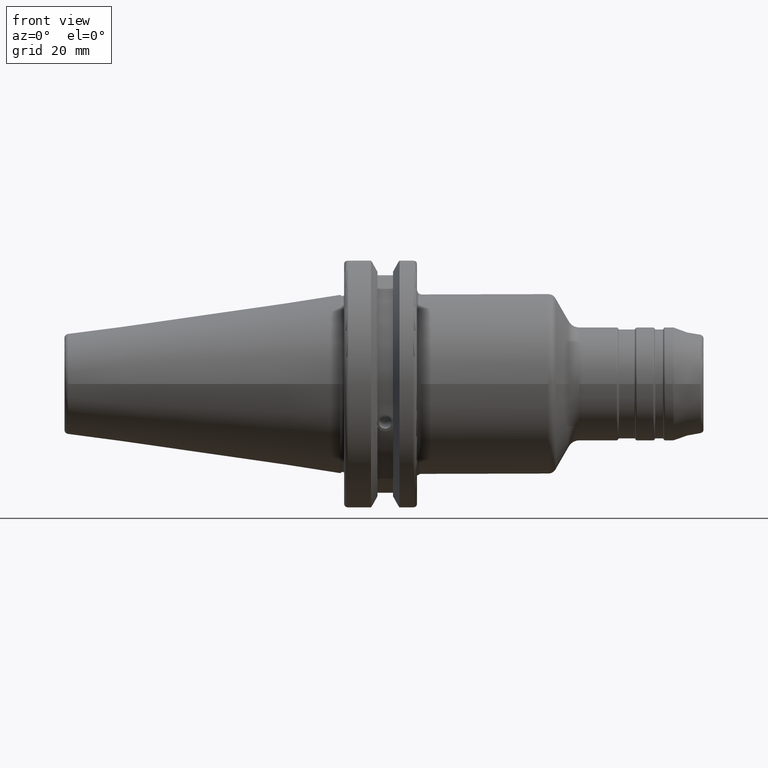
[diagram: clean part render]
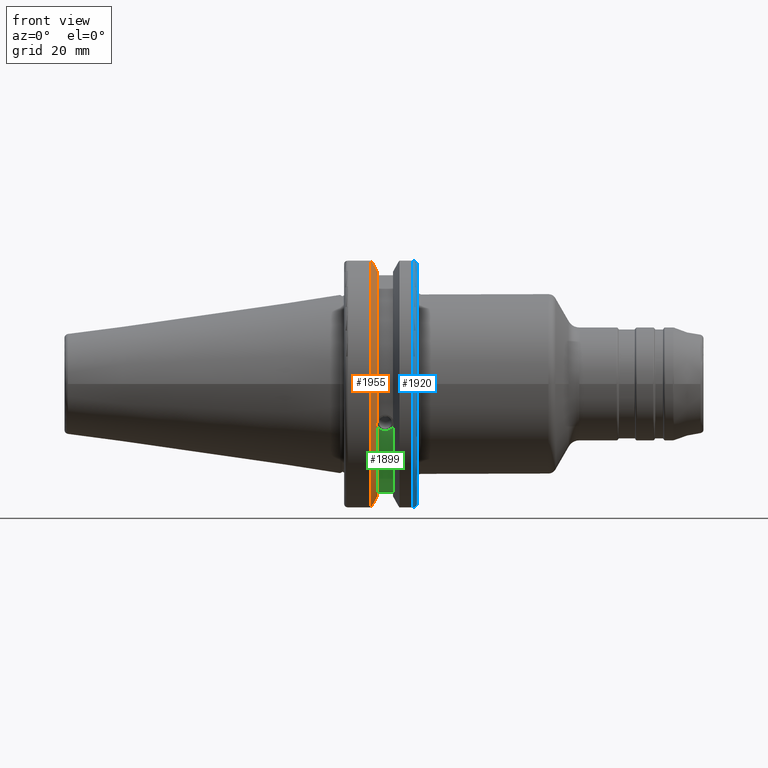
[diagram: same view with three faces highlighted in distinct colors, each labeled with its STEP entity id]
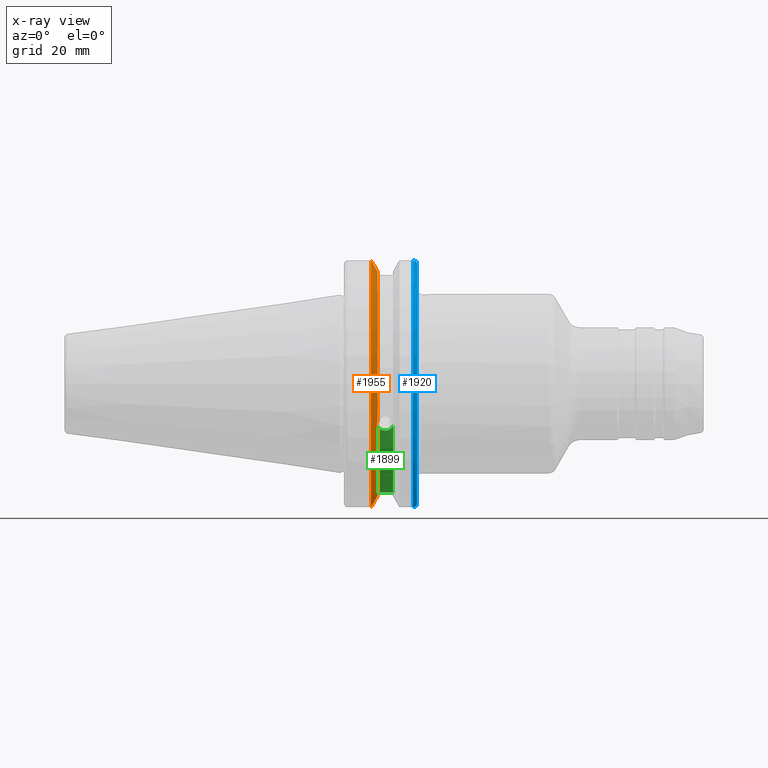
[diagram: x-ray of the same camera — body ghosted, the three highlighted faces saturated]
A machine part, front view with three faces highlighted in distinct colors.
The next image is the same camera in x-ray (body ghosted, the three faces saturated) — at least one of them is partly hidden behind the body in this view.
Their STEP definitions:

[orange] entity #1955 — the highlighted conical surface has half-angle 60 deg.
#25=(
BOUNDED_CURVE()
B_SPLINE_CURVE(2,(#3615,#3616,#3617),.UNSPECIFIED.,.F.,.F.)
B_SPLINE_CURVE_WITH_KNOTS((3,3),(0.,0.276549142795978),.UNSPECIFIED.)
CURVE()
GEOMETRIC_REPRESENTATION_ITEM()
RATIONAL_B_SPLINE_CURVE((1.,1.00095203903289,1.00031614444804))
REPRESENTATION_ITEM('')
);
#26=(
BOUNDED_CURVE()
B_SPLINE_CURVE(2,(#3627,#3628,#3629),.UNSPECIFIED.,.F.,.F.)
B_SPLINE_CURVE_WITH_KNOTS((3,3),(0.055058646739268,0.331607789535851),
 .UNSPECIFIED.)
CURVE()
GEOMETRIC_REPRESENTATION_ITEM()
RATIONAL_B_SPLINE_CURVE((1.00031614444915,1.00095203903626,1.))
REPRESENTATION_ITEM('')
);
#27=(
BOUNDED_CURVE()
B_SPLINE_CURVE(2,(#3677,#3678,#3679),.UNSPECIFIED.,.F.,.F.)
B_SPLINE_CURVE_WITH_KNOTS((3,3),(0.,0.0639048713675987),.UNSPECIFIED.)
CURVE()
GEOMETRIC_REPRESENTATION_ITEM()
RATIONAL_B_SPLINE_CURVE((1.,1.00028444218286,1.00047644010579))
REPRESENTATION_ITEM('')
);
#28=(
BOUNDED_CURVE()
B_SPLINE_CURVE(2,(#3730,#3731,#3732),.UNSPECIFIED.,.F.,.F.)
B_SPLINE_CURVE_WITH_KNOTS((3,3),(0.329353533631249,0.393258405001023),
 .UNSPECIFIED.)
CURVE()
GEOMETRIC_REPRESENTATION_ITEM()
RATIONAL_B_SPLINE_CURVE((1.00047644010598,1.00028444218298,1.))
REPRESENTATION_ITEM('')
);
#109=B_SPLINE_CURVE_WITH_KNOTS('',3,(#3212,#3213,#3214,#3215,#3216,#3217,
#3218,#3219,#3220,#3221,#3222,#3223,#3224,#3225),.UNSPECIFIED.,.F.,.F.,
(4,2,2,2,2,2,4),(0.451995700189023,0.464547828547662,0.504528771685167,
0.544509714822672,0.584490657960178,0.624471601097683,0.637023729456321),
 .UNSPECIFIED.);
#378=CONICAL_SURFACE('',#2233,30.3546886482472,1.0471975511966);
#481=FACE_OUTER_BOUND('',#603,.T.);
#603=EDGE_LOOP('',(#1808,#1809,#1810,#1811,#1812,#1813,#1814,#1815));
#695=CIRCLE('',#2126,28.9593772964944);
#738=CIRCLE('',#2232,31.75);
#739=CIRCLE('',#2234,28.9593772964944);
#823=VERTEX_POINT('',#3209);
#824=VERTEX_POINT('',#3211);
#841=VERTEX_POINT('',#3304);
#903=VERTEX_POINT('',#3612);
#904=VERTEX_POINT('',#3614);
#907=VERTEX_POINT('',#3626);
#917=VERTEX_POINT('',#3675);
#926=VERTEX_POINT('',#3729);
#1057=EDGE_CURVE('',#824,#823,#109,.T.);
#1081=EDGE_CURVE('',#824,#841,#695,.T.);
#1165=EDGE_CURVE('',#904,#903,#25,.T.);
#1171=EDGE_CURVE('',#907,#841,#26,.T.);
#1187=EDGE_CURVE('',#917,#903,#27,.T.);
#1202=EDGE_CURVE('',#907,#926,#28,.T.);
#1232=EDGE_CURVE('',#917,#926,#738,.T.);
#1233=EDGE_CURVE('',#904,#823,#739,.T.);
#1808=ORIENTED_EDGE('',*,*,#1057,.T.);
#1809=ORIENTED_EDGE('',*,*,#1233,.F.);
#1810=ORIENTED_EDGE('',*,*,#1165,.T.);
#1811=ORIENTED_EDGE('',*,*,#1187,.F.);
#1812=ORIENTED_EDGE('',*,*,#1232,.T.);
#1813=ORIENTED_EDGE('',*,*,#1202,.F.);
#1814=ORIENTED_EDGE('',*,*,#1171,.T.);
#1815=ORIENTED_EDGE('',*,*,#1081,.F.);
#1955=ADVANCED_FACE('',(#481),#378,.T.);
#2126=AXIS2_PLACEMENT_3D('',#3305,#2560,#2561);
#2232=AXIS2_PLACEMENT_3D('',#3803,#2835,#2836);
#2233=AXIS2_PLACEMENT_3D('',#3804,#2837,#2838);
#2234=AXIS2_PLACEMENT_3D('',#3805,#2839,#2840);
#2560=DIRECTION('center_axis',(1.,0.,0.));
#2561=DIRECTION('ref_axis',(0.,0.,-1.));
#2835=DIRECTION('center_axis',(1.,0.,0.));
#2836=DIRECTION('ref_axis',(0.,0.,-1.));
#2837=DIRECTION('center_axis',(-1.,0.,0.));
#2838=DIRECTION('ref_axis',(0.,-1.,-1.22464679914735E-16));
#2839=DIRECTION('center_axis',(1.,0.,0.));
#2840=DIRECTION('ref_axis',(0.,0.,-1.));
#3209=CARTESIAN_POINT('',(9.261,-27.4956274489925,-9.09043478536245));
#3211=CARTESIAN_POINT('',(9.261,-26.9060914640648,-10.7101715919071));
#3212=CARTESIAN_POINT('Ctrl Pts',(9.261,-26.9060914640648,-10.7101715919071));
#3213=CARTESIAN_POINT('Ctrl Pts',(9.24687959280038,-26.9406927482839,-10.6893765730703));
#3214=CARTESIAN_POINT('Ctrl Pts',(9.23340701821434,-26.9744191989197,-10.6676007180673));
#3215=CARTESIAN_POINT('Ctrl Pts',(9.18001855884095,-27.1113422433189,-10.5723885976054));
#3216=CARTESIAN_POINT('Ctrl Pts',(9.14188029158246,-27.2180531796526,-10.4801333026531));
#3217=CARTESIAN_POINT('Ctrl Pts',(9.08968935539424,-27.3968610665578,-10.2639559818059));
#3218=CARTESIAN_POINT('Ctrl Pts',(9.076,-27.4684373304961,-10.139516340139));
#3219=CARTESIAN_POINT('Ctrl Pts',(9.076,-27.559599249844,-9.8890510252165));
#3220=CARTESIAN_POINT('Ctrl Pts',(9.08968935539424,-27.5847569104122,-9.74771639360671));
#3221=CARTESIAN_POINT('Ctrl Pts',(9.14188029158246,-27.5867382255984,-9.46717946402648));
#3222=CARTESIAN_POINT('Ctrl Pts',(9.18001855884096,-27.5642934663232,-9.32791534028656));
#3223=CARTESIAN_POINT('Ctrl Pts',(9.23340701821434,-27.5206055003512,-9.16696618806877));
#3224=CARTESIAN_POINT('Ctrl Pts',(9.24687959280038,-27.5087667900418,-9.12860597076217));
#3225=CARTESIAN_POINT('Ctrl Pts',(9.261,-27.4956274489925,-9.09043478536245));
#3304=CARTESIAN_POINT('',(9.261,-8.19,-27.7771386827498));
#3305=CARTESIAN_POINT('Origin',(9.261,0.,0.));
#3612=CARTESIAN_POINT('',(7.92858530351256,-8.19,30.1755016258903));
#3614=CARTESIAN_POINT('',(9.261,-8.19,27.7771386827498));
#3615=CARTESIAN_POINT('Ctrl Pts',(9.261,-8.19,27.7771386827498));
#3616=CARTESIAN_POINT('Ctrl Pts',(8.62236356152209,-8.19,28.9303689539738));
#3617=CARTESIAN_POINT('Ctrl Pts',(7.92858530351256,-8.19,30.1755016258903));
#3626=CARTESIAN_POINT('',(7.92858530351256,-8.19,-30.1755016258903));
#3627=CARTESIAN_POINT('Ctrl Pts',(7.92858530351256,-8.19,-30.1755016258903));
#3628=CARTESIAN_POINT('Ctrl Pts',(8.62236356152749,-8.19,-28.9303689539641));
#3629=CARTESIAN_POINT('Ctrl Pts',(9.261,-8.19,-27.7771386827498));
#3675=CARTESIAN_POINT('',(7.64983323092436,-8.67204822802685,30.5427254764662));
#3677=CARTESIAN_POINT('Ctrl Pts',(7.64983323092436,-8.67204822802685,30.5427254764662));
#3678=CARTESIAN_POINT('Ctrl Pts',(7.79089148121628,-8.42917748262645,30.357706789263));
#3679=CARTESIAN_POINT('Ctrl Pts',(7.92858530351256,-8.19,30.1755016258903));
#3729=CARTESIAN_POINT('',(7.64983323092436,-8.67204822802685,-30.5427254764662));
#3730=CARTESIAN_POINT('Ctrl Pts',(7.92858530351256,-8.19,-30.1755016258903));
#3731=CARTESIAN_POINT('Ctrl Pts',(7.79089148121163,-8.42917748263459,-30.3577067892692));
#3732=CARTESIAN_POINT('Ctrl Pts',(7.64983323092436,-8.67204822802685,-30.5427254764662));
#3803=CARTESIAN_POINT('Origin',(7.64983323092436,0.,0.));
#3804=CARTESIAN_POINT('Origin',(8.45541661546218,0.,0.));
#3805=CARTESIAN_POINT('Origin',(9.261,0.,0.));

[blue] entity #1920 — the highlighted toroidal blend (fillet) surface has major radius 30.75 mm and minor (blend) radius 1 mm.
#123=B_SPLINE_CURVE_WITH_KNOTS('',3,(#3568,#3569,#3570,#3571,#3572,#3573),
 .UNSPECIFIED.,.F.,.F.,(4,2,4),(0.0977383630915687,0.112311108149119,0.150804350305566),
 .UNSPECIFIED.);
#124=B_SPLINE_CURVE_WITH_KNOTS('',3,(#3575,#3576,#3577,#3578,#3579,#3580),
 .UNSPECIFIED.,.F.,.F.,(4,2,4),(0.452741154494497,0.491581665024872,0.505824174364157),
 .UNSPECIFIED.);
#125=B_SPLINE_CURVE_WITH_KNOTS('',3,(#3582,#3583,#3584,#3585,#3586,#3587,
#3588,#3589),.UNSPECIFIED.,.F.,.F.,(4,2,2,4),(-0.104180282751876,-0.072978474246144,
-0.0343524753874979,0.),.UNSPECIFIED.);
#126=B_SPLINE_CURVE_WITH_KNOTS('',3,(#3592,#3593,#3594,#3595,#3596,#3597,
#3598,#3599),.UNSPECIFIED.,.F.,.F.,(4,2,2,4),(0.,0.0343524753874979,0.0729784742461441,
0.104180282751877),.UNSPECIFIED.);
#446=FACE_OUTER_BOUND('',#563,.T.);
#563=EDGE_LOOP('',(#1617,#1618,#1619,#1620,#1621,#1622));
#712=CIRCLE('',#2169,30.75);
#713=CIRCLE('',#2173,31.75);
#885=VERTEX_POINT('',#3529);
#886=VERTEX_POINT('',#3531);
#896=VERTEX_POINT('',#3567);
#897=VERTEX_POINT('',#3574);
#898=VERTEX_POINT('',#3581);
#899=VERTEX_POINT('',#3590);
#1142=EDGE_CURVE('',#886,#885,#712,.T.);
#1156=EDGE_CURVE('',#896,#886,#123,.T.);
#1157=EDGE_CURVE('',#885,#897,#124,.T.);
#1158=EDGE_CURVE('',#897,#898,#125,.T.);
#1159=EDGE_CURVE('',#898,#899,#713,.T.);
#1160=EDGE_CURVE('',#899,#896,#126,.T.);
#1617=ORIENTED_EDGE('',*,*,#1156,.T.);
#1618=ORIENTED_EDGE('',*,*,#1142,.T.);
#1619=ORIENTED_EDGE('',*,*,#1157,.T.);
#1620=ORIENTED_EDGE('',*,*,#1158,.T.);
#1621=ORIENTED_EDGE('',*,*,#1159,.T.);
#1622=ORIENTED_EDGE('',*,*,#1160,.T.);
#1848=TOROIDAL_SURFACE('',#2172,30.75,1.);
#1920=ADVANCED_FACE('',(#446),#1848,.T.);
#2169=AXIS2_PLACEMENT_3D('',#3532,#2667,#2668);
#2172=AXIS2_PLACEMENT_3D('',#3566,#2683,#2684);
#2173=AXIS2_PLACEMENT_3D('',#3591,#2685,#2686);
#2667=DIRECTION('center_axis',(-1.,0.,0.));
#2668=DIRECTION('ref_axis',(0.,-1.,1.60812264967664E-16));
#2683=DIRECTION('center_axis',(1.,0.,0.));
#2684=DIRECTION('ref_axis',(0.,0.,-1.));
#2685=DIRECTION('center_axis',(1.,0.,0.));
#2686=DIRECTION('ref_axis',(0.,-1.,1.60812264967664E-16));
#3529=CARTESIAN_POINT('',(19.05,-8.19,29.6392712461019));
#3531=CARTESIAN_POINT('',(19.05,-8.19,-29.6392712461019));
#3532=CARTESIAN_POINT('Origin',(19.05,0.,0.));
#3566=CARTESIAN_POINT('Origin',(18.05,0.,0.));
#3567=CARTESIAN_POINT('',(18.9058722749097,-8.19,-30.1755016258903));
#3568=CARTESIAN_POINT('Ctrl Pts',(18.9058722749097,-8.19,-30.1755016258903));
#3569=CARTESIAN_POINT('Ctrl Pts',(18.9324477233044,-8.19,-30.1299319366157));
#3570=CARTESIAN_POINT('Ctrl Pts',(18.9550700364447,-8.19,-30.0829389905409));
#3571=CARTESIAN_POINT('Ctrl Pts',(19.0210043632013,-8.19,-29.9188002007263));
#3572=CARTESIAN_POINT('Ctrl Pts',(19.05,-8.19,-29.76758205329));
#3573=CARTESIAN_POINT('Ctrl Pts',(19.05,-8.19,-29.6392712461019));
#3574=CARTESIAN_POINT('',(18.9058722749097,-8.19,30.1755016258903));
#3575=CARTESIAN_POINT('Ctrl Pts',(19.05,-8.19,29.6392712461019));
#3576=CARTESIAN_POINT('Ctrl Pts',(19.05,-8.19,29.7687396145364));
#3577=CARTESIAN_POINT('Ctrl Pts',(19.020485567083,-8.19,29.9212724384851));
#3578=CARTESIAN_POINT('Ctrl Pts',(18.9539643471756,-8.19,30.0852355256475));
#3579=CARTESIAN_POINT('Ctrl Pts',(18.9318163728133,-8.19,30.131014531546));
#3580=CARTESIAN_POINT('Ctrl Pts',(18.9058722749097,-8.19,30.1755016258903));
#3581=CARTESIAN_POINT('',(18.05,-8.67204822802685,30.5427254764662));
#3582=CARTESIAN_POINT('Ctrl Pts',(18.9058722749097,-8.19,30.1755016258903));
#3583=CARTESIAN_POINT('Ctrl Pts',(18.8574463042989,-8.2703682833078,30.2367261024977));
#3584=CARTESIAN_POINT('Ctrl Pts',(18.7926702662319,-8.34909446036477,30.2966996242308));
#3585=CARTESIAN_POINT('Ctrl Pts',(18.6396724190507,-8.48862804755883,30.4029961692546));
#3586=CARTESIAN_POINT('Ctrl Pts',(18.5184414294771,-8.56482138642532,30.4610401774263));
#3587=CARTESIAN_POINT('Ctrl Pts',(18.2983170433775,-8.6471881193939,30.5237870709558));
#3588=CARTESIAN_POINT('Ctrl Pts',(18.1645082512917,-8.67204822802685,30.5427254764662));
#3589=CARTESIAN_POINT('Ctrl Pts',(18.05,-8.67204822802685,30.5427254764662));
#3590=CARTESIAN_POINT('',(18.05,-8.67204822802685,-30.5427254764662));
#3591=CARTESIAN_POINT('Origin',(18.05,0.,0.));
#3592=CARTESIAN_POINT('Ctrl Pts',(18.05,-8.67204822802686,-30.5427254764662));
#3593=CARTESIAN_POINT('Ctrl Pts',(18.1645082512917,-8.67204822802686,-30.5427254764662));
#3594=CARTESIAN_POINT('Ctrl Pts',(18.2983170433775,-8.6471881193939,-30.5237870709558));
#3595=CARTESIAN_POINT('Ctrl Pts',(18.5184414294771,-8.56482138642532,-30.4610401774263));
#3596=CARTESIAN_POINT('Ctrl Pts',(18.6396724190507,-8.48862804755884,-30.4029961692546));
#3597=CARTESIAN_POINT('Ctrl Pts',(18.7926702662319,-8.34909446036477,-30.2966996242308));
#3598=CARTESIAN_POINT('Ctrl Pts',(18.8574463042989,-8.27036828330781,-30.2367261024977));
#3599=CARTESIAN_POINT('Ctrl Pts',(18.9058722749097,-8.19,-30.1755016258903));

[green] entity #1899 — the highlighted cylindrical surface (partial cylindrical patch) has radius 28.15 mm, axis along (1, 0, 0).
#110=B_SPLINE_CURVE_WITH_KNOTS('',3,(#3229,#3230,#3231,#3232,#3233,#3234,
#3235,#3236,#3237,#3238,#3239,#3240,#3241,#3242,#3243),.UNSPECIFIED.,.F.,
 .F.,(4,2,2,3,2,2,4),(-0.231446873660084,-0.158271583089134,-0.079135791544567,
0.,0.0791357915445671,0.158271583089134,0.231446873660466),
 .UNSPECIFIED.);
#151=CYLINDRICAL_SURFACE('',#2123,28.15);
#199=LINE('',#3302,#294);
#294=VECTOR('',#2557,10.);
#425=FACE_OUTER_BOUND('',#540,.T.);
#540=EDGE_LOOP('',(#1495,#1496,#1497,#1498));
#693=CIRCLE('',#2122,28.15);
#694=CIRCLE('',#2124,28.15);
#825=VERTEX_POINT('',#3226);
#826=VERTEX_POINT('',#3228);
#839=VERTEX_POINT('',#3296);
#840=VERTEX_POINT('',#3300);
#1059=EDGE_CURVE('',#826,#825,#110,.T.);
#1077=EDGE_CURVE('',#826,#839,#693,.T.);
#1079=EDGE_CURVE('',#825,#840,#694,.T.);
#1080=EDGE_CURVE('',#840,#839,#199,.T.);
#1495=ORIENTED_EDGE('',*,*,#1059,.T.);
#1496=ORIENTED_EDGE('',*,*,#1079,.T.);
#1497=ORIENTED_EDGE('',*,*,#1080,.T.);
#1498=ORIENTED_EDGE('',*,*,#1077,.F.);
#1899=ADVANCED_FACE('',(#425),#151,.T.);
#2122=AXIS2_PLACEMENT_3D('',#3297,#2550,#2551);
#2123=AXIS2_PLACEMENT_3D('',#3299,#2553,#2554);
#2124=AXIS2_PLACEMENT_3D('',#3301,#2555,#2556);
#2550=DIRECTION('center_axis',(1.,0.,0.));
#2551=DIRECTION('ref_axis',(0.,0.,-1.));
#2553=DIRECTION('center_axis',(1.,0.,0.));
#2554=DIRECTION('ref_axis',(0.,1.,0.));
#2555=DIRECTION('center_axis',(1.,0.,0.));
#2556=DIRECTION('ref_axis',(0.,0.,-1.));
#2557=DIRECTION('',(1.,0.,0.));
#3226=CARTESIAN_POINT('',(9.261,-26.1451788594704,-10.4332220529567));
#3228=CARTESIAN_POINT('',(13.091,-26.1451788594704,-10.4332220529567));
#3229=CARTESIAN_POINT('Ctrl Pts',(13.091,-26.1451788594704,-10.4332220529567));
#3230=CARTESIAN_POINT('Ctrl Pts',(12.9847694290343,-26.0576536126147,-10.6525563316815));
#3231=CARTESIAN_POINT('Ctrl Pts',(12.833279862294,-25.9751489313128,-10.8509873904882));
#3232=CARTESIAN_POINT('Ctrl Pts',(12.4745293734259,-25.8346412777187,-11.1816210830117));
#3233=CARTESIAN_POINT('Ctrl Pts',(12.2384549887012,-25.7695111693635,-11.3298867884858));
#3234=CARTESIAN_POINT('Ctrl Pts',(11.7210874573612,-25.6822868299377,-11.5262389251846));
#3235=CARTESIAN_POINT('Ctrl Pts',(11.4397859718152,-25.6603958057616,-11.5743935949859));
#3236=CARTESIAN_POINT('Ctrl Pts',(11.176,-25.6603958057616,-11.5743935949859));
#3237=CARTESIAN_POINT('Ctrl Pts',(10.9122140281848,-25.6603958057616,-11.5743935949859));
#3238=CARTESIAN_POINT('Ctrl Pts',(10.6309125426388,-25.6822868299377,-11.5262389251846));
#3239=CARTESIAN_POINT('Ctrl Pts',(10.1135450112988,-25.7695111693635,-11.3298867884858));
#3240=CARTESIAN_POINT('Ctrl Pts',(9.87747062657411,-25.8346412777187,-11.1816210830117));
#3241=CARTESIAN_POINT('Ctrl Pts',(9.5187201377051,-25.9751489313131,-10.8509873904873));
#3242=CARTESIAN_POINT('Ctrl Pts',(9.36723057097183,-26.0576536126096,-10.6525563316942));
#3243=CARTESIAN_POINT('Ctrl Pts',(9.261,-26.1451788594704,-10.4332220529567));
#3296=CARTESIAN_POINT('',(13.091,-8.19,-26.932255754021));
#3297=CARTESIAN_POINT('Origin',(13.091,0.,0.));
#3299=CARTESIAN_POINT('Origin',(11.176,0.,0.));
#3300=CARTESIAN_POINT('',(9.261,-8.19,-26.932255754021));
#3301=CARTESIAN_POINT('Origin',(9.261,0.,0.));
#3302=CARTESIAN_POINT('',(11.176,-8.19,-26.932255754021));